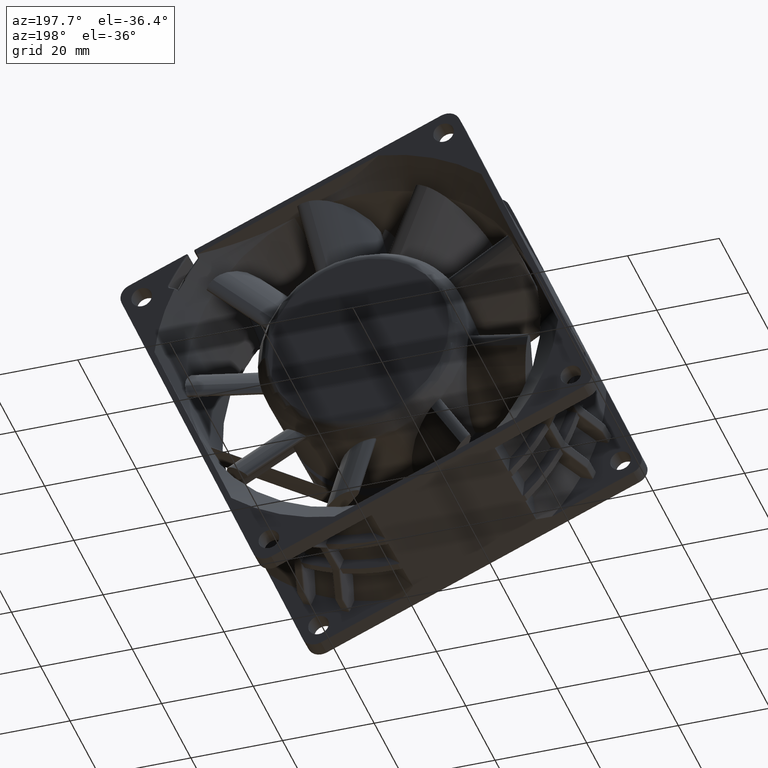
[diagram: clean part render]
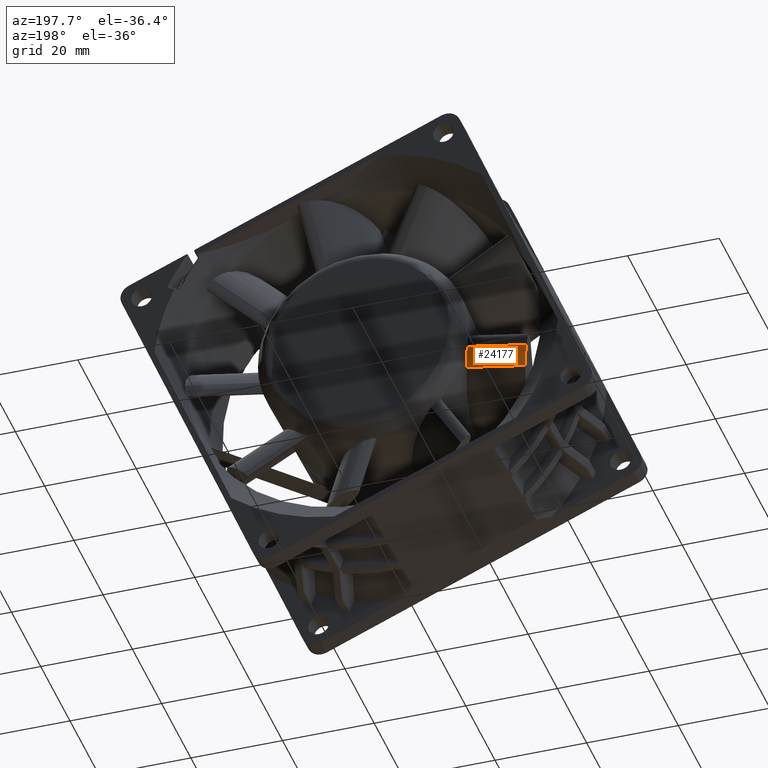
[diagram: same view with one face highlighted and labeled with its STEP entity id]
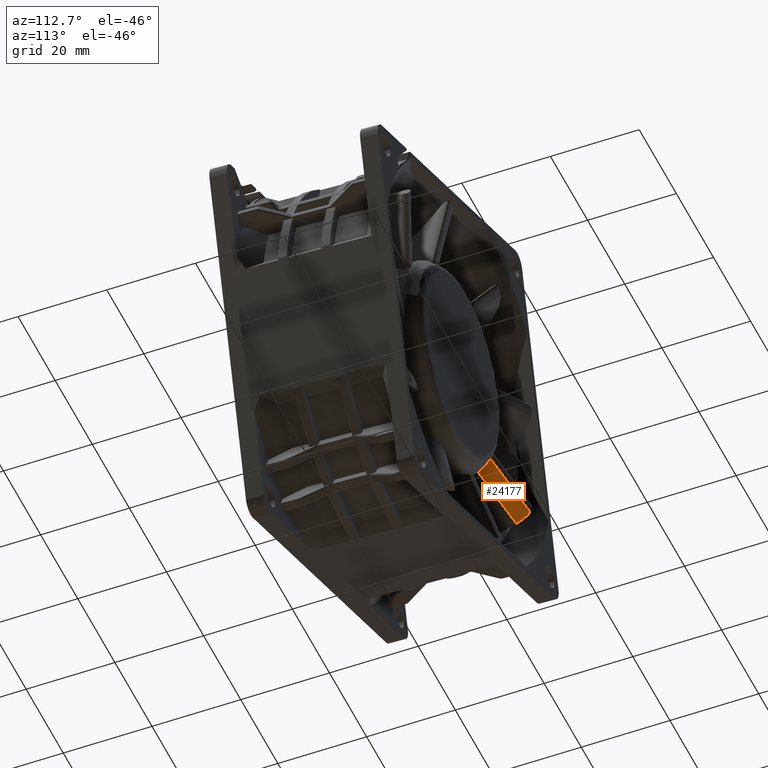
[diagram: same view with one face highlighted and labeled with its STEP entity id]
A machine part, auxiliary view. The second image highlights one B-rep face of the part: STEP entity #24177.
A second angle (auxiliary view) of the same face is appended — the face is thin or edge-on in the first view.
In plain terms, the highlighted face is a SurfaceOfExtrusion surface.
Its self-contained STEP definition (entity closure, byte-faithful):
#20470=CARTESIAN_POINT('',(-1.296256343204E1,-3.561435032779E1,
-3.304852513369E0));
#20472=CARTESIAN_POINT('',(-1.296256343204E1,-3.561435032779E1,
-3.304852513369E0));
#20473=CARTESIAN_POINT('',(-1.257296224353E1,-3.575615356364E1,
-2.901741501099E0));
#20474=CARTESIAN_POINT('',(-1.179989760553E1,-3.602323530211E1,
-2.178982050647E0));
#20475=CARTESIAN_POINT('',(-1.063183432752E1,-3.638489899565E1,
-1.353235893464E0));
#20476=CARTESIAN_POINT('',(-9.872277161415E0,-3.659365001744E1,
-9.955047085798E-1));
#20477=CARTESIAN_POINT('',(-9.501015582335E0,-3.668979016952E1,
-8.483591231968E-1));
#20510=CARTESIAN_POINT('',(-7.866463296488E0,-2.161293027808E1,
-7.297295480592E0));
#20512=DIRECTION('',(-3.303660895493E-1,-9.076733711904E-1,2.588190451025E-1));
#20513=VECTOR('',#20512,1.542561508811E1);
#20514=CARTESIAN_POINT('',(-7.866463296488E0,-2.161293027808E1,
-7.297295480592E0));
#20515=LINE('',#20514,#20513);
#20627=CARTESIAN_POINT('',(-4.366121580753E0,-2.258178430069E1,
-4.871194666626E0));
#20628=CARTESIAN_POINT('',(-4.760879186948E0,-2.250545907399E1,
-5.017489351405E0));
#20629=CARTESIAN_POINT('',(-5.553263561286E0,-2.233079110750E1,
-5.376258389624E0));
#20630=CARTESIAN_POINT('',(-6.735538556063E0,-2.200276931712E1,
-6.203442318372E0));
#20631=CARTESIAN_POINT('',(-7.490572500129E0,-2.174974333929E1,
-6.908370282482E0));
#20632=CARTESIAN_POINT('',(-7.866463296488E0,-2.161293027808E1,
-7.297295480592E0));
#21278=DIRECTION('',(-3.303660775547E-1,-9.076733735049E-1,2.588190522960E-1));
#21279=VECTOR('',#21278,1.554304255325E1);
#21280=CARTESIAN_POINT('',(-4.366121580753E0,-2.258178430069E1,
-4.871194666626E0));
#21281=LINE('',#21280,#21279);
#21282=CARTESIAN_POINT('',(-4.366121580753E0,-2.258178430069E1,
-4.871194666626E0));
#21505=VERTEX_POINT('',#21282);
#21574=VERTEX_POINT('',#20470);
#21575=VERTEX_POINT('',#20477);
#21580=VERTEX_POINT('',#20510);
#24157=CARTESIAN_POINT('',(-2.598974905601E0,-1.792163586578E1,
-6.179358503988E0));
#24158=CARTESIAN_POINT('',(-2.620662807769E0,-1.791613036210E1,
-6.187734040461E0));
#24159=CARTESIAN_POINT('',(-2.991020072027E0,-1.782249871977E1,
-6.332107236320E0));
#24160=CARTESIAN_POINT('',(-3.693753356766E0,-1.765767126875E1,
-6.651055013521E0));
#24161=CARTESIAN_POINT('',(-4.615863503360E0,-1.748320176675E1,
-7.216208950155E0));
#24162=CARTESIAN_POINT('',(-5.475989781874E0,-1.735067709406E1,
-7.849344114762E0));
#24163=CARTESIAN_POINT('',(-6.024937225995E0,-1.728301479430E1,
-8.312750324746E0));
#24164=CARTESIAN_POINT('',(-6.315866520995E0,-1.725093618216E1,
-8.571604040350E0));
#24165=CARTESIAN_POINT('',(-6.333632496036E0,-1.724899131816E1,
-8.587460579947E0));
#24167=DIRECTION('',(-3.303660895494E-1,-9.076733711904E-1,2.588190451025E-1));
#24168=VECTOR('',#24167,1.E0);
#24169=SURFACE_OF_LINEAR_EXTRUSION('',#24166,#24168);
#24170=ORIENTED_EDGE('',*,*,#23326,.F.);
#24171=ORIENTED_EDGE('',*,*,#23366,.F.);
#24172=ORIENTED_EDGE('',*,*,#23449,.F.);
#24174=ORIENTED_EDGE('',*,*,#24173,.T.);
#24175=EDGE_LOOP('',(#24170,#24171,#24172,#24174));
#24176=FACE_OUTER_BOUND('',#24175,.F.);
#20478=B_SPLINE_CURVE_WITH_KNOTS('',3,(#20472,#20473,#20474,#20475,#20476,
#20477),.UNSPECIFIED.,.F.,.F.,(4,1,1,4),(0.E0,3.333333333333E-1,
6.666666666667E-1,1.E0),.UNSPECIFIED.);
#20633=B_SPLINE_CURVE_WITH_KNOTS('',3,(#20627,#20628,#20629,#20630,#20631,
#20632),.UNSPECIFIED.,.F.,.F.,(4,1,1,4),(0.E0,3.333333333333E-1,
6.666666666667E-1,1.E0),.UNSPECIFIED.);
#23326=EDGE_CURVE('',#21574,#21575,#20478,.T.);
#23366=EDGE_CURVE('',#21580,#21574,#20515,.T.);
#23449=EDGE_CURVE('',#21505,#21580,#20633,.T.);
#24166=B_SPLINE_CURVE_WITH_KNOTS('',3,(#24157,#24158,#24159,#24160,#24161,
#24162,#24163,#24164,#24165),.UNSPECIFIED.,.F.,.F.,(4,1,1,1,1,1,4),(0.E0,
1.585075557090E-2,2.709003960785E-1,5.218057634623E-1,7.408217420785E-1,
9.841513642199E-1,1.E0),.UNSPECIFIED.);
#24173=EDGE_CURVE('',#21505,#21575,#21281,.T.);
#24177=ADVANCED_FACE('',(#24176),#24169,.T.);